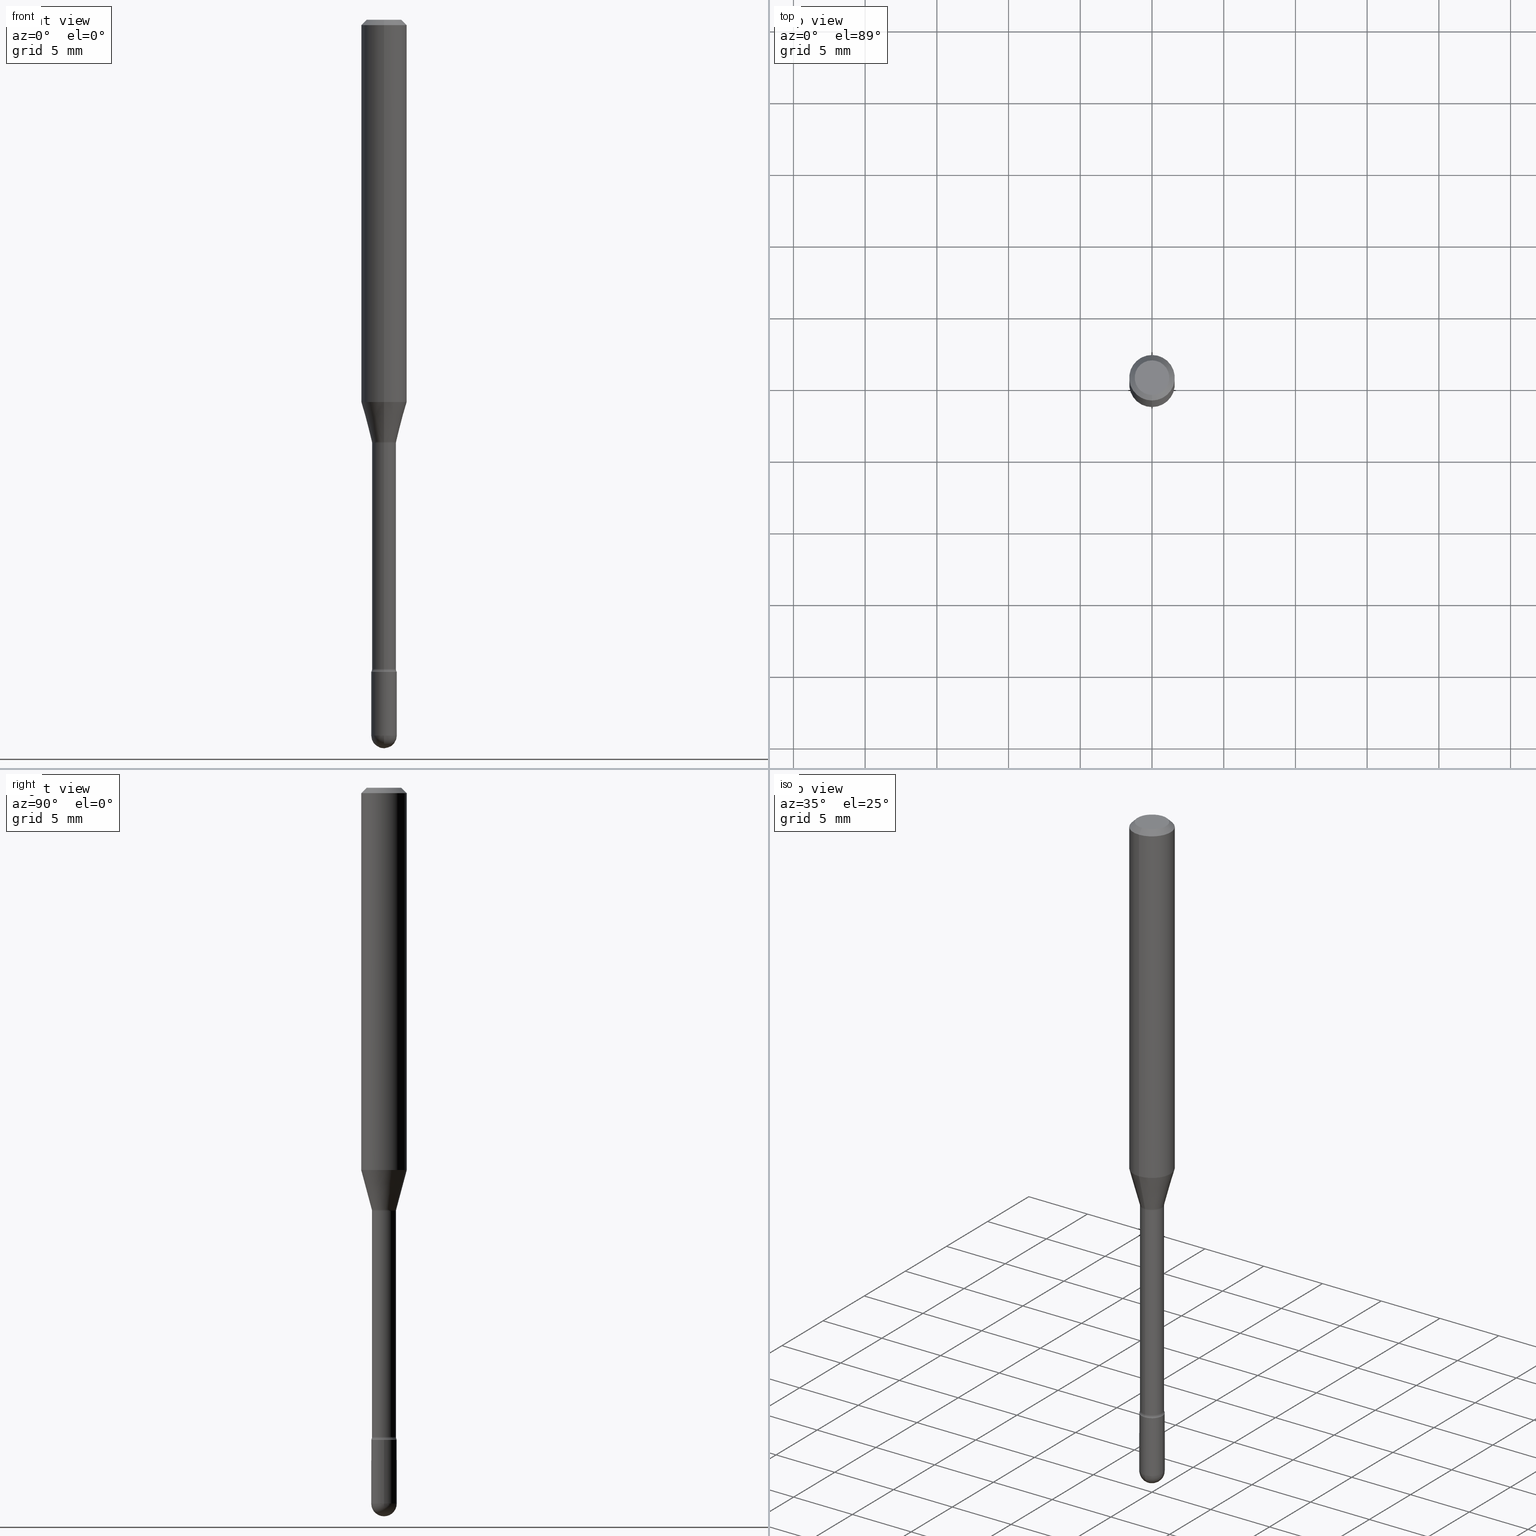
[diagram: canonical four-view strip — front | top / right | iso, engineering-drawing reading convention]
A machine part, canonical four-view strip (front | top / right | iso — engineering-drawing reading convention). The complete STEP part file that produces these views, byte-faithful:
ISO-10303-21;
HEADER;
FILE_DESCRIPTION (( 'STEP AP203' ),
    '1' );
FILE_NAME ('03793.STEP',
    '2024-04-09T20:29:17',
    ( '' ),
    ( '' ),
    'SwSTEP 2.0',
    'SolidWorks 2023',
    '' );
FILE_SCHEMA (( 'CONFIG_CONTROL_DESIGN' ));
ENDSEC;

DATA;
#1 = DIRECTION ( 'NONE',  ( -6.982962677686265133E-15, -1.000000000000000000, 3.491469661165304910E-15 ) ) ;
#2 = DIRECTION ( 'NONE',  ( -6.982962677686265133E-15, -1.000000000000000000, 3.491469661165304910E-15 ) ) ;
#3 = DIRECTION ( 'NONE',  ( -6.982962677686265922E-15, -1.000000000000000000, 3.491469661165305305E-15 ) ) ;
#4 = CONICAL_SURFACE ( 'NONE', #322, 0.06250000000000000000, 0.7853981633974483900 ) ;
#5 = CC_DESIGN_APPROVAL ( #215, ( #175 ) ) ;
#6 = DIRECTION ( 'NONE',  ( 6.982962677686265922E-15, 1.000000000000000000, -3.483106191921935554E-15 ) ) ;
#7 = APPROVAL_ROLE ( '' ) ;
#8 = FACE_OUTER_BOUND ( 'NONE', #407, .T. ) ;
#9 = LINE ( 'NONE', #447, #164 ) ;
#10 = PRODUCT_RELATED_PRODUCT_CATEGORY ( 'detail', '', ( #462 ) ) ;
#11 = PERSON_AND_ORGANIZATION_ROLE ( 'design_owner' ) ;
#12 = AXIS2_PLACEMENT_3D ( 'NONE', #222, #444, #526 ) ;
#13 = AXIS2_PLACEMENT_3D ( 'NONE', #63, #18, #191 ) ;
#14 = CALENDAR_DATE ( 2024, 9, 4 ) ;
#15 = ORIENTED_EDGE ( 'NONE', *, *, #74, .F. ) ;
#16 = ORIENTED_EDGE ( 'NONE', *, *, #92, .F. ) ;
#17 = SHAPE_DEFINITION_REPRESENTATION ( #416, #364 ) ;
#18 = DIRECTION ( 'NONE',  ( -2.445476960663988921E-29, 3.491469661165304910E-15, 1.000000000000000000 ) ) ;
#19 = CIRCLE ( 'NONE', #504, 0.01499999999999999424 ) ;
#20 = ADVANCED_FACE ( 'NONE', ( #35 ), #208, .F. ) ;
#21 = CIRCLE ( 'NONE', #396, 0.04749999999999999362 ) ;
#22 = ORIENTED_EDGE ( 'NONE', *, *, #184, .F. ) ;
#23 = PERSON_AND_ORGANIZATION_ROLE ( 'classification_officer' ) ;
#24 = CARTESIAN_POINT ( 'NONE',  ( 4.805346204153793345E-29, -6.860760830826780393E-15, -1.964999999999999858 ) ) ;
#25 = ORIENTED_EDGE ( 'NONE', *, *, #128, .T. ) ;
#26 = DIRECTION ( 'NONE',  ( -6.982962677686265922E-15, -1.000000000000000000, 3.491469661165305699E-15 ) ) ;
#27 = ORIENTED_EDGE ( 'NONE', *, *, #433, .T. ) ;
#28 = DIRECTION ( 'NONE',  ( -2.445468806185136597E-29, 3.491481338843145583E-15, 1.000000000000000000 ) ) ;
#29 = VERTEX_POINT ( 'NONE', #437 ) ;
#30 = AXIS2_PLACEMENT_3D ( 'NONE', #426, #206, #375 ) ;
#31 = AXIS2_PLACEMENT_3D ( 'NONE', #98, #357, #229 ) ;
#32 = FACE_OUTER_BOUND ( 'NONE', #471, .T. ) ;
#33 = ADVANCED_FACE ( 'NONE', ( #45 ), #4, .T. ) ;
#34 = EDGE_CURVE ( 'NONE', #38, #194, #512, .T. ) ;
#35 = FACE_OUTER_BOUND ( 'NONE', #204, .T. ) ;
#36 = PERSON ( 'UNSPECIFIED', 'UNSPECIFIED', 'UNSPECIFIED', ('UNSPECIFIED'), ('UNSPECIFIED'), ('UNSPECIFIED') ) ;
#37 = CARTESIAN_POINT ( 'NONE',  ( 2.832088531438495623E-29, -4.043444834813290827E-15, -1.158092501787272965 ) ) ;
#38 = VERTEX_POINT ( 'NONE', #210 ) ;
#39 = CARTESIAN_POINT ( 'NONE',  ( 3.840629472727447874E-16, 0.04749999999999999362, -2.485923956665947867E-16 ) ) ;
#40 = ORIENTED_EDGE ( 'NONE', *, *, #244, .T. ) ;
#41 = EDGE_CURVE ( 'NONE', #371, #240, #411, .T. ) ;
#42 = CLOSED_SHELL ( 'NONE', ( #69, #110, #556, #379, #410 ) ) ;
#43 = CONICAL_SURFACE ( 'NONE', #523, 0.03341111260566397706, 0.2617993877991501850 ) ;
#44 = DIRECTION ( 'NONE',  ( -2.445476960663988921E-29, 3.491469661165304910E-15, 1.000000000000000000 ) ) ;
#45 = FACE_OUTER_BOUND ( 'NONE', #276, .T. ) ;
#46 = CARTESIAN_POINT ( 'NONE',  ( 3.403499704291320534E-16, 0.04789999999999385027, -1.782345589506696193 ) ) ;
#47 = DIRECTION ( 'NONE',  ( -2.445476960663988921E-29, 3.491469661165304910E-15, 1.000000000000000000 ) ) ;
#48 = CARTESIAN_POINT ( 'NONE',  ( 3.407447217031445109E-16, 0.03341111260565993862, -1.158092501787273187 ) ) ;
#49 = CARTESIAN_POINT ( 'NONE',  ( 2.841573096316353332E-29, -4.057013286636126142E-15, -1.161974787463810888 ) ) ;
#50 =( LENGTH_UNIT ( ) NAMED_UNIT ( * ) SI_UNIT ( $, .METRE. ) );
#51 = CIRCLE ( 'NONE', #103, 0.01500000000000008792 ) ;
#52 = CIRCLE ( 'NONE', #59, 0.01500000000000008792 ) ;
#53 = CARTESIAN_POINT ( 'NONE',  ( 2.841582571615184441E-29, -4.056999717468898277E-15, -1.161974787463810665 ) ) ;
#54 = LENGTH_MEASURE_WITH_UNIT ( LENGTH_MEASURE( 0.02539999999999999897 ), #50 );
#55 = DIRECTION ( 'NONE',  ( -6.982962677686266711E-15, -1.000000000000000000, 4.151744671222284594E-15 ) ) ;
#56 = EDGE_CURVE ( 'NONE', #507, #76, #343, .T. ) ;
#57 = COORDINATED_UNIVERSAL_TIME_OFFSET ( 5, 0, .BEHIND. ) ;
#58 = CIRCLE ( 'NONE', #323, 0.06250000000000000000 ) ;
#59 = AXIS2_PLACEMENT_3D ( 'NONE', #303, #90, #258 ) ;
#60 = ORIENTED_EDGE ( 'NONE', *, *, #492, .T. ) ;
#61 = CARTESIAN_POINT ( 'NONE',  ( 3.668215440996003596E-31, -5.237204491747986406E-17, -0.01500000000000008271 ) ) ;
#62 = EDGE_LOOP ( 'NONE', ( #64, #25, #390, #86 ) ) ;
#63 = CARTESIAN_POINT ( 'NONE',  ( 2.566604604098489247E-29, -3.664406678762549915E-15, -1.049531296095961519 ) ) ;
#64 = ORIENTED_EDGE ( 'NONE', *, *, #228, .F. ) ;
#65 = PERSON_AND_ORGANIZATION ( #36, #70 ) ;
#66 = CARTESIAN_POINT ( 'NONE',  ( 4.892434153376336703E-29, -6.980819545787783111E-15, -2.000000000000000000 ) ) ;
#67 = EDGE_CURVE ( 'NONE', #450, #194, #19, .T. ) ;
#68 = ORIENTED_EDGE ( 'NONE', *, *, #442, .F. ) ;
#69 = ADVANCED_FACE ( 'NONE', ( #220 ), #358, .T. ) ;
#70 = ORGANIZATION ( 'UNSPECIFIED', 'UNSPECIFIED', '' ) ;
#71 = DIRECTION ( 'NONE',  ( -2.445476960663988921E-29, 3.491469661165304910E-15, 1.000000000000000000 ) ) ;
#72 = APPLICATION_CONTEXT ( 'configuration controlled 3d designs of mechanical parts and assemblies' ) ;
#73 = ORIENTED_EDGE ( 'NONE', *, *, #356, .T. ) ;
#74 = EDGE_CURVE ( 'NONE', #29, #302, #9, .T. ) ;
#75 = CARTESIAN_POINT ( 'NONE',  ( 3.316907271900976096E-16, 0.04749999999999999362, 3.181809715964966858E-17 ) ) ;
#76 = VERTEX_POINT ( 'NONE', #351 ) ;
#77 = DIRECTION ( 'NONE',  ( 1.000000000000000000, -6.982962677686276966E-15, 0.000000000000000000 ) ) ;
#78 = VERTEX_POINT ( 'NONE', #138 ) ;
#79 = AXIS2_PLACEMENT_3D ( 'NONE', #75, #196, #377 ) ;
#80 = VECTOR ( 'NONE', #130, 39.37007874015748143 ) ;
#81 = DIRECTION ( 'NONE',  ( -6.982962677686265922E-15, -1.000000000000000000, 3.491469661165304910E-15 ) ) ;
#82 = ORIENTED_EDGE ( 'NONE', *, *, #184, .T. ) ;
#83 = DIRECTION ( 'NONE',  ( -2.445468806185136597E-29, 3.491481338843145583E-15, 1.000000000000000000 ) ) ;
#84 = EDGE_LOOP ( 'NONE', ( #197, #22, #159, #254 ) ) ;
#85 = CARTESIAN_POINT ( 'NONE',  ( 2.841573096316353332E-29, -4.057013286636126142E-15, -1.161974787463810888 ) ) ;
#86 = ORIENTED_EDGE ( 'NONE', *, *, #492, .F. ) ;
#87 = ADVANCED_FACE ( 'NONE', ( #264 ), #386, .T. ) ;
#88 = AXIS2_PLACEMENT_3D ( 'NONE', #395, #177, #97 ) ;
#89 = CIRCLE ( 'NONE', #549, 0.03500000000000000333 ) ;
#90 = DIRECTION ( 'NONE',  ( -1.000000000000000000, 6.982962677686265922E-15, -4.883557194083112340E-29 ) ) ;
#91 = CARTESIAN_POINT ( 'NONE',  ( 4.377403759588539704E-29, -6.249730693485896433E-15, -1.790000000000000036 ) ) ;
#92 = EDGE_CURVE ( 'NONE', #497, #271, #314, .T. ) ;
#93 = CARTESIAN_POINT ( 'NONE',  ( 2.374002335562008169E-16, 0.03341111260565993862, -1.158092501787273187 ) ) ;
#94 = CARTESIAN_POINT ( 'NONE',  ( 3.403499704291163255E-16, 0.04789999999999594582, -1.161974787463810888 ) ) ;
#95 = ADVANCED_FACE ( 'NONE', ( #181 ), #560, .F. ) ;
#96 = EDGE_CURVE ( 'NONE', #194, #240, #530, .T. ) ;
#97 = DIRECTION ( 'NONE',  ( -7.105427357601001859E-15, -1.000000000000000000, 0.000000000000000000 ) ) ;
#98 = CARTESIAN_POINT ( 'NONE',  ( 4.358685075079700183E-29, -6.223005551474419818E-15, -1.782345589506695971 ) ) ;
#99 = AXIS2_PLACEMENT_3D ( 'NONE', #527, #136, #311 ) ;
#100 = AXIS2_PLACEMENT_3D ( 'NONE', #472, #562, #218 ) ;
#101 = CARTESIAN_POINT ( 'NONE',  ( -4.364351673553658835E-16, -0.06250000000000366374, -1.049531296095961297 ) ) ;
#102 = CARTESIAN_POINT ( 'NONE',  ( 4.377389163071394665E-29, -6.249751596529231267E-15, -1.790000000000000036 ) ) ;
#103 = AXIS2_PLACEMENT_3D ( 'NONE', #46, #135, #310 ) ;
#104 = CC_DESIGN_APPROVAL ( #438, ( #374 ) ) ;
#105 = ORIENTED_EDGE ( 'NONE', *, *, #250, .T. ) ;
#106 = APPROVAL_DATE_TIME ( #146, #438 ) ;
#107 = DIRECTION ( 'NONE',  ( -2.445476960663988921E-29, 3.491469661165304910E-15, 1.000000000000000000 ) ) ;
#108 = ORIENTED_EDGE ( 'NONE', *, *, #56, .T. ) ;
#109 = CARTESIAN_POINT ( 'NONE',  ( 2.832088531438495623E-29, -4.043444834813290827E-15, -1.158092501787272965 ) ) ;
#110 = ADVANCED_FACE ( 'NONE', ( #355 ), #172, .T. ) ;
#111 = ORIENTED_EDGE ( 'NONE', *, *, #544, .F. ) ;
#112 = DIRECTION ( 'NONE',  ( -6.982962677686266711E-15, -1.000000000000000000, 4.088232597799138123E-15 ) ) ;
#113 = CC_DESIGN_PERSON_AND_ORGANIZATION_ASSIGNMENT ( #495, #272, ( #175 ) ) ;
#114 = AXIS2_PLACEMENT_3D ( 'NONE', #53, #47, #55 ) ;
#115 = ORIENTED_EDGE ( 'NONE', *, *, #418, .F. ) ;
#116 = CC_DESIGN_SECURITY_CLASSIFICATION ( #540, ( #175 ) ) ;
#117 = DIRECTION ( 'NONE',  ( 1.000000000000000000, -6.982962677686265922E-15, 4.883557194083112340E-29 ) ) ;
#118 = CARTESIAN_POINT ( 'NONE',  ( 3.668215440996003596E-31, -5.237204491747986406E-17, -0.01500000000000008271 ) ) ;
#119 = DIRECTION ( 'NONE',  ( -2.445468806185136597E-29, 3.491481338843145583E-15, 1.000000000000000000 ) ) ;
#120 = DESIGN_CONTEXT ( 'detailed design', #457, 'design' ) ;
#121 = ORIENTED_EDGE ( 'NONE', *, *, #516, .T. ) ;
#122 = CARTESIAN_POINT ( 'NONE',  ( -1.169113584055446105E-44, 1.669184350826100908E-30, 4.780733988912460139E-16 ) ) ;
#123 = EDGE_LOOP ( 'NONE', ( #217, #251 ) ) ;
#124 = AXIS2_PLACEMENT_3D ( 'NONE', #125, #476, #391 ) ;
#125 = CARTESIAN_POINT ( 'NONE',  ( 2.832088531438495623E-29, -4.043444834813290827E-15, -1.158092501787272965 ) ) ;
#126 = ORIENTED_EDGE ( 'NONE', *, *, #250, .F. ) ;
#127 = LINE ( 'NONE', #347, #80 ) ;
#128 = EDGE_CURVE ( 'NONE', #279, #373, #332, .T. ) ;
#129 = ORIENTED_EDGE ( 'NONE', *, *, #128, .F. ) ;
#130 = DIRECTION ( 'NONE',  ( -2.445476960663988921E-29, 3.491469661165304910E-15, 1.000000000000000000 ) ) ;
#131 = CARTESIAN_POINT ( 'NONE',  ( 2.337685600651166843E-16, 0.03289999999999595331, -1.161974787463810888 ) ) ;
#132 = CIRCLE ( 'NONE', #477, 0.03500000000000000333 ) ;
#133 = CARTESIAN_POINT ( 'NONE',  ( 0.000000000000000000, 0.000000000000000000, 0.000000000000000000 ) ) ;
#134 = DIRECTION ( 'NONE',  ( 7.105427357600997914E-15, 1.000000000000000000, 0.000000000000000000 ) ) ;
#135 = DIRECTION ( 'NONE',  ( 1.000000000000000000, -7.105427357601001070E-15, 4.926315365531774418E-29 ) ) ;
#136 = DIRECTION ( 'NONE',  ( -2.445468806185136597E-29, 3.491481338843145583E-15, 1.000000000000000000 ) ) ;
#137 = CARTESIAN_POINT ( 'NONE',  ( -4.364351673553912750E-16, -0.06250000000000005551, -0.01499999999999986587 ) ) ;
#138 = CARTESIAN_POINT ( 'NONE',  ( -3.773273898774340269E-16, -0.04749999999999999362, 8.309722214410915366E-17 ) ) ;
#139 = DIRECTION ( 'NONE',  ( 0.000000000000000000, 0.000000000000000000, 1.000000000000000000 ) ) ;
#140 = AXIS2_PLACEMENT_3D ( 'NONE', #243, #256, #382 ) ;
#141 = AXIS2_PLACEMENT_3D ( 'NONE', #152, #117, #290 ) ;
#142 = DIRECTION ( 'NONE',  ( -2.445476960663988921E-29, 3.491469661165304910E-15, 1.000000000000000000 ) ) ;
#143 = COORDINATED_UNIVERSAL_TIME_OFFSET ( 5, 0, .BEHIND. ) ;
#144 = APPROVAL_STATUS ( 'not_yet_approved' ) ;
#145 = VERTEX_POINT ( 'NONE', #101 ) ;
#146 = DATE_AND_TIME ( #363, #427 ) ;
#147 = AXIS2_PLACEMENT_3D ( 'NONE', #461, #71, #26 ) ;
#148 = APPROVAL_PERSON_ORGANIZATION ( #65, #518, #241 ) ;
#149 = VERTEX_POINT ( 'NONE', #225 ) ;
#150 = DIRECTION ( 'NONE',  ( -2.445476960663988921E-29, 3.491469661165304910E-15, 1.000000000000000000 ) ) ;
#151 = ORIENTED_EDGE ( 'NONE', *, *, #537, .T. ) ;
#152 = CARTESIAN_POINT ( 'NONE',  ( 4.805346204153793345E-29, -6.860760830826780393E-15, -1.964999999999999858 ) ) ;
#153 = ORIENTED_EDGE ( 'NONE', *, *, #189, .F. ) ;
#154 = CARTESIAN_POINT ( 'NONE',  ( 4.805346204153793345E-29, -6.860760830826780393E-15, -1.964999999999999858 ) ) ;
#155 = VECTOR ( 'NONE', #424, 39.37007874015748143 ) ;
#156 = CIRCLE ( 'NONE', #342, 0.03500000000000000333 ) ;
#157 = ORIENTED_EDGE ( 'NONE', *, *, #418, .T. ) ;
#158 = DIRECTION ( 'NONE',  ( -2.445476960663988921E-29, 3.491469661165304910E-15, 1.000000000000000000 ) ) ;
#159 = ORIENTED_EDGE ( 'NONE', *, *, #41, .T. ) ;
#160 = DIRECTION ( 'NONE',  ( -2.445476960663988921E-29, 3.491469661165304910E-15, 1.000000000000000000 ) ) ;
#161 = ORIENTED_EDGE ( 'NONE', *, *, #537, .F. ) ;
#162 = DIRECTION ( 'NONE',  ( -2.445468806185136597E-29, 3.491481338843145583E-15, 1.000000000000000000 ) ) ;
#163 = DIRECTION ( 'NONE',  ( -6.982962677686266711E-15, -1.000000000000000000, 0.000000000000000000 ) ) ;
#164 = VECTOR ( 'NONE', #521, 39.37007874015748143 ) ;
#165 = VECTOR ( 'NONE', #344, 39.37007874015748143 ) ;
#166 = EDGE_CURVE ( 'NONE', #240, #194, #401, .T. ) ;
#167 = FACE_OUTER_BOUND ( 'NONE', #503, .T. ) ;
#168 = EDGE_LOOP ( 'NONE', ( #454, #388, #108, #298 ) ) ;
#169 = DIRECTION ( 'NONE',  ( 1.839019923739599526E-15, 0.2588190451025248473, 0.9659258262890670910 ) ) ;
#170 = VERTEX_POINT ( 'NONE', #304 ) ;
#171 = CYLINDRICAL_SURFACE ( 'NONE', #524, 0.03500000000000000333 ) ;
#172 = SPHERICAL_SURFACE ( 'NONE', #12, 0.03500000000000001721 ) ;
#173 = ADVANCED_FACE ( 'NONE', ( #8 ), #179, .T. ) ;
#174 = AXIS2_PLACEMENT_3D ( 'NONE', #491, #107, #278 ) ;
#175 = PRODUCT_DEFINITION_FORMATION_WITH_SPECIFIED_SOURCE ( 'ANY', '', #462, .NOT_KNOWN. ) ;
#176 = DIRECTION ( 'NONE',  ( 1.000000000000000000, -6.982962677686276966E-15, 0.000000000000000000 ) ) ;
#177 = DIRECTION ( 'NONE',  ( -1.000000000000000000, 7.105427357601001070E-15, -4.926315508542082329E-29 ) ) ;
#178 = DIRECTION ( 'NONE',  ( -2.445476960663988921E-29, 3.491469661165304910E-15, 1.000000000000000000 ) ) ;
#179 = CYLINDRICAL_SURFACE ( 'NONE', #315, 0.06250000000000000000 ) ;
#180 = DIRECTION ( 'NONE',  ( 1.000000000000000000, -6.982962677686265922E-15, 4.876176775795935793E-29 ) ) ;
#181 = FACE_OUTER_BOUND ( 'NONE', #84, .T. ) ;
#182 = COORDINATED_UNIVERSAL_TIME_OFFSET ( 5, 0, .BEHIND. ) ;
#183 = AXIS2_PLACEMENT_3D ( 'NONE', #455, #142, #317 ) ;
#184 = EDGE_CURVE ( 'NONE', #371, #450, #202, .T. ) ;
#185 =( CONVERSION_BASED_UNIT ( 'INCH', #54 ) LENGTH_UNIT ( ) NAMED_UNIT ( #207 ) );
#186 = ORIENTED_EDGE ( 'NONE', *, *, #211, .T. ) ;
#187 = EDGE_CURVE ( 'NONE', #548, #76, #265, .T. ) ;
#188 = EDGE_LOOP ( 'NONE', ( #82, #73, #126, #327 ) ) ;
#189 = EDGE_CURVE ( 'NONE', #248, #145, #230, .T. ) ;
#190 = CLOSED_SHELL ( 'NONE', ( #434, #232, #534, #33, #173, #227, #319, #331, #87, #282, #20, #288, #468, #95 ) ) ;
#191 = DIRECTION ( 'NONE',  ( -6.982962677686265922E-15, -1.000000000000000000, 4.370956789862821150E-15 ) ) ;
#192 = AXIS2_PLACEMENT_3D ( 'NONE', #349, #565, #3 ) ;
#193 = LOCAL_TIME ( 16, 29, 17.00000000000000000, #143 ) ;
#194 = VERTEX_POINT ( 'NONE', #131 ) ;
#195 = DATE_TIME_ROLE ( 'classification_date' ) ;
#196 = DIRECTION ( 'NONE',  ( 2.445476960663988641E-29, -3.491469661165304910E-15, -1.000000000000000000 ) ) ;
#197 = ORIENTED_EDGE ( 'NONE', *, *, #67, .F. ) ;
#198 = FACE_OUTER_BOUND ( 'NONE', #188, .T. ) ;
#199 = VERTEX_POINT ( 'NONE', #479 ) ;
#200 = SECURITY_CLASSIFICATION_LEVEL ( 'unclassified' ) ;
#201 = CARTESIAN_POINT ( 'NONE',  ( -4.287811248607203282E-16, -0.06250000000000005551, -0.01499999999999986587 ) ) ;
#202 = CIRCLE ( 'NONE', #183, 0.03341111260566397706 ) ;
#203 = AXIS2_PLACEMENT_3D ( 'NONE', #415, #466, #81 ) ;
#204 = EDGE_LOOP ( 'NONE', ( #467, #348 ) ) ;
#205 = APPROVAL_PERSON_ORGANIZATION ( #267, #438, #367 ) ;
#206 = DIRECTION ( 'NONE',  ( -2.445468806185136597E-29, 3.491481338843145583E-15, 1.000000000000000000 ) ) ;
#207 = DIMENSIONAL_EXPONENTS ( 1.000000000000000000, 0.000000000000000000, 0.000000000000000000, 0.000000000000000000, 0.000000000000000000, 0.000000000000000000, 0.000000000000000000 ) ;
#208 = PLANE ( 'NONE',  #140 ) ;
#209 = DIRECTION ( 'NONE',  ( -2.445468806185136597E-29, 3.491481338843145583E-15, 1.000000000000000000 ) ) ;
#210 = CARTESIAN_POINT ( 'NONE',  ( 2.412292587905979007E-16, 0.03289999999999376062, -1.782345589506695971 ) ) ;
#211 = EDGE_CURVE ( 'NONE', #149, #199, #286, .T. ) ;
#212 = DIRECTION ( 'NONE',  ( -2.445476960663988921E-29, 3.491469661165304910E-15, 1.000000000000000000 ) ) ;
#213 = ORIENTED_EDGE ( 'NONE', *, *, #350, .T. ) ;
#214 = CIRCLE ( 'NONE', #30, 0.03500000000000000333 ) ;
#215 = APPROVAL ( #397, 'UNSPECIFIED' ) ;
#216 = DIRECTION ( 'NONE',  ( -6.982962677686265922E-15, -1.000000000000000000, 3.491469661165304910E-15 ) ) ;
#217 = ORIENTED_EDGE ( 'NONE', *, *, #529, .T. ) ;
#218 = DIRECTION ( 'NONE',  ( 6.982962677686265922E-15, 1.000000000000000000, 0.000000000000000000 ) ) ;
#219 = EDGE_CURVE ( 'NONE', #373, #497, #387, .T. ) ;
#220 = FACE_OUTER_BOUND ( 'NONE', #432, .T. ) ;
#221 = CARTESIAN_POINT ( 'NONE',  ( 4.377389163071394665E-29, -6.249751596529231267E-15, -1.790000000000000036 ) ) ;
#222 = CARTESIAN_POINT ( 'NONE',  ( 4.805346204153793345E-29, -6.860760830826780393E-15, -1.964999999999999858 ) ) ;
#223 = CIRCLE ( 'NONE', #514, 0.03500000000000000333 ) ;
#224 = PERSON_AND_ORGANIZATION ( #36, #70 ) ;
#225 = CARTESIAN_POINT ( 'NONE',  ( -2.444036937189759377E-16, -0.03500000000000630385, -1.789999999999999813 ) ) ;
#226 = DIRECTION ( 'NONE',  ( -2.445476960663988921E-29, 3.491469661165304910E-15, 1.000000000000000000 ) ) ;
#227 = ADVANCED_FACE ( 'NONE', ( #198 ), #246, .T. ) ;
#228 = EDGE_CURVE ( 'NONE', #279, #170, #488, .T. ) ;
#229 = DIRECTION ( 'NONE',  ( -6.982962677686265922E-15, -1.000000000000000000, 0.000000000000000000 ) ) ;
#230 = CIRCLE ( 'NONE', #13, 0.06250000000000000000 ) ;
#231 = ORIENTED_EDGE ( 'NONE', *, *, #219, .F. ) ;
#232 = ADVANCED_FACE ( 'NONE', ( #32 ), #333, .T. ) ;
#233 = ORIENTED_EDGE ( 'NONE', *, *, #544, .T. ) ;
#234 = ORIENTED_EDGE ( 'NONE', *, *, #329, .T. ) ;
#235 = COORDINATED_UNIVERSAL_TIME_OFFSET ( 5, 0, .BEHIND. ) ;
#236 = VECTOR ( 'NONE', #400, 39.37007874015748143 ) ;
#237 = CARTESIAN_POINT ( 'NONE',  ( -2.297394720958344695E-16, -0.03290000000000620900, -1.782345589506695971 ) ) ;
#238 = VERTEX_POINT ( 'NONE', #237 ) ;
#239 = CARTESIAN_POINT ( 'NONE',  ( -2.297394720958497537E-16, -0.03290000000000405794, -1.161974787463810443 ) ) ;
#240 = VERTEX_POINT ( 'NONE', #239 ) ;
#241 = APPROVAL_ROLE ( '' ) ;
#242 = CARTESIAN_POINT ( 'NONE',  ( 4.805346204153793345E-29, -6.860760830826780393E-15, -1.964999999999999858 ) ) ;
#243 = CARTESIAN_POINT ( 'NONE',  ( 2.444036937190630575E-16, 0.03499999999999375139, -1.790000000000000036 ) ) ;
#244 = EDGE_CURVE ( 'NONE', #302, #271, #214, .T. ) ;
#245 = FACE_OUTER_BOUND ( 'NONE', #553, .T. ) ;
#246 = CONICAL_SURFACE ( 'NONE', #273, 0.03341111260566397706, 0.2617993877991501850 ) ;
#247 = APPROVAL_PERSON_ORGANIZATION ( #224, #215, #7 ) ;
#248 = VERTEX_POINT ( 'NONE', #554 ) ;
#249 = CARTESIAN_POINT ( 'NONE',  ( 4.440892098500625669E-16, 0.06250000000000000000, 2.598565450684145310E-16 ) ) ;
#250 = EDGE_CURVE ( 'NONE', #145, #248, #58, .T. ) ;
#251 = ORIENTED_EDGE ( 'NONE', *, *, #296, .T. ) ;
#252 = CYLINDRICAL_SURFACE ( 'NONE', #192, 0.03289999999999999175 ) ;
#253 = UNCERTAINTY_MEASURE_WITH_UNIT (LENGTH_MEASURE( 1.000000000000000082E-05 ), #185, 'distance_accuracy_value', 'NONE');
#254 = ORIENTED_EDGE ( 'NONE', *, *, #166, .T. ) ;
#255 = DIRECTION ( 'NONE',  ( -2.445476960663988921E-29, 3.491469661165304910E-15, 1.000000000000000000 ) ) ;
#256 = DIRECTION ( 'NONE',  ( -2.445476960663988641E-29, 3.491469661165304910E-15, 1.000000000000000000 ) ) ;
#257 = VECTOR ( 'NONE', #169, 39.37007874015748143 ) ;
#258 = DIRECTION ( 'NONE',  ( -6.982962677686267499E-15, -1.000000000000000000, 0.000000000000000000 ) ) ;
#259 = DIRECTION ( 'NONE',  ( -2.445476960663988921E-29, 3.491469661165304910E-15, 1.000000000000000000 ) ) ;
#260 = CARTESIAN_POINT ( 'NONE',  ( -2.333085523452963922E-16, -0.03341111260566802243, -1.158092501787272965 ) ) ;
#261 = DIRECTION ( 'NONE',  ( 1.000000000000000000, -7.105427357601001070E-15, 4.926315365531774418E-29 ) ) ;
#262 = DIRECTION ( 'NONE',  ( -2.445476960663988921E-29, 3.491469661165304910E-15, 1.000000000000000000 ) ) ;
#263 = EDGE_CURVE ( 'NONE', #238, #38, #451, .T. ) ;
#264 = FACE_OUTER_BOUND ( 'NONE', #168, .T. ) ;
#265 = CIRCLE ( 'NONE', #174, 0.06250000000000000000 ) ;
#266 = CARTESIAN_POINT ( 'NONE',  ( -1.169113584055446105E-44, 1.669184350826100908E-30, 4.780733988912460139E-16 ) ) ;
#267 = PERSON_AND_ORGANIZATION ( #36, #70 ) ;
#268 = EDGE_CURVE ( 'NONE', #78, #548, #500, .T. ) ;
#269 = ORIENTED_EDGE ( 'NONE', *, *, #313, .F. ) ;
#270 = PERSON_AND_ORGANIZATION ( #36, #70 ) ;
#271 = VERTEX_POINT ( 'NONE', #326 ) ;
#272 = PERSON_AND_ORGANIZATION_ROLE ( 'creator' ) ;
#273 = AXIS2_PLACEMENT_3D ( 'NONE', #109, #158, #423 ) ;
#274 = CIRCLE ( 'NONE', #478, 0.06250000000000000000 ) ;
#275 = TOROIDAL_SURFACE ( 'NONE', #324, 0.04790000000000007446, 0.01500000000000008792 ) ;
#276 = EDGE_LOOP ( 'NONE', ( #428, #325, #564, #456 ) ) ;
#277 = DATE_TIME_ROLE ( 'creation_date' ) ;
#278 = DIRECTION ( 'NONE',  ( -6.982962677686265922E-15, -1.000000000000000000, 3.483106191921935554E-15 ) ) ;
#279 = VERTEX_POINT ( 'NONE', #66 ) ;
#280 = PERSON_AND_ORGANIZATION ( #36, #70 ) ;
#281 = PLANE ( 'NONE',  #79 ) ;
#282 = ADVANCED_FACE ( 'NONE', ( #502 ), #281, .F. ) ;
#283 = ORIENTED_EDGE ( 'NONE', *, *, #552, .F. ) ;
#284 = APPROVAL_STATUS ( 'not_yet_approved' ) ;
#285 = FACE_OUTER_BOUND ( 'NONE', #366, .T. ) ;
#286 = CIRCLE ( 'NONE', #532, 0.03500000000000000333 ) ;
#287 = EDGE_LOOP ( 'NONE', ( #294, #473, #330, #376 ) ) ;
#288 = ADVANCED_FACE ( 'NONE', ( #245 ), #561, .F. ) ;
#289 = DATE_AND_TIME ( #508, #414 ) ;
#290 = DIRECTION ( 'NONE',  ( 6.982962677686265922E-15, 1.000000000000000000, 0.000000000000000000 ) ) ;
#291 = DIRECTION ( 'NONE',  ( 6.982962677686265922E-15, 1.000000000000000000, -3.483106191921935554E-15 ) ) ;
#292 = CC_DESIGN_PERSON_AND_ORGANIZATION_ASSIGNMENT ( #280, #412, ( #175 ) ) ;
#293 = DIRECTION ( 'NONE',  ( 1.000000000000000000, -6.982962677686276966E-15, 0.000000000000000000 ) ) ;
#294 = ORIENTED_EDGE ( 'NONE', *, *, #34, .F. ) ;
#295 = DIRECTION ( 'NONE',  ( -4.851104656540964275E-15, -0.7071067811865500152, -0.7071067811865450192 ) ) ;
#296 = EDGE_CURVE ( 'NONE', #78, #507, #21, .T. ) ;
#297 = AXIS2_PLACEMENT_3D ( 'NONE', #85, #255, #1 ) ;
#298 = ORIENTED_EDGE ( 'NONE', *, *, #552, .T. ) ;
#299 = CARTESIAN_POINT ( 'NONE',  ( -2.486899575159870668E-16, -0.03500000000000687284, -1.964999999999999858 ) ) ;
#300 = ORIENTED_EDGE ( 'NONE', *, *, #356, .F. ) ;
#301 = CARTESIAN_POINT ( 'NONE',  ( 4.358670540980283234E-29, -6.223026365132013835E-15, -1.782345589506695971 ) ) ;
#302 = VERTEX_POINT ( 'NONE', #545 ) ;
#303 = CARTESIAN_POINT ( 'NONE',  ( -3.344839122611290224E-16, -0.04790000000000629171, -1.782345589506695749 ) ) ;
#304 = CARTESIAN_POINT ( 'NONE',  ( 2.444036937190673962E-16, 0.03499999999999315464, -1.964999999999999858 ) ) ;
#305 = AXIS2_PLACEMENT_3D ( 'NONE', #525, #212, #385 ) ;
#306 = LOCAL_TIME ( 16, 29, 17.00000000000000000, #338 ) ;
#307 = FACE_OUTER_BOUND ( 'NONE', #499, .T. ) ;
#308 = CARTESIAN_POINT ( 'NONE',  ( 4.364351673553919652E-16, 0.06249999999999995143, -0.01500000000000030129 ) ) ;
#309 = CC_DESIGN_PERSON_AND_ORGANIZATION_ASSIGNMENT ( #541, #23, ( #540 ) ) ;
#310 = DIRECTION ( 'NONE',  ( 7.105427357601001859E-15, 1.000000000000000000, 0.000000000000000000 ) ) ;
#311 = DIRECTION ( 'NONE',  ( 1.000000000000000000, -6.982962677686265922E-15, 4.876176775795936353E-29 ) ) ;
#312 = DIRECTION ( 'NONE',  ( -2.438088387897960049E-29, 3.491481338843145188E-15, 1.000000000000000000 ) ) ;
#313 = EDGE_CURVE ( 'NONE', #248, #76, #464, .T. ) ;
#314 = LINE ( 'NONE', #484, #236 ) ;
#315 = AXIS2_PLACEMENT_3D ( 'NONE', #266, #226, #531 ) ;
#316 = CC_DESIGN_DATE_AND_TIME_ASSIGNMENT ( #449, #277, ( #374 ) ) ;
#317 = DIRECTION ( 'NONE',  ( -6.982962677686266711E-15, -1.000000000000000000, 4.088232597799138123E-15 ) ) ;
#318 = DIRECTION ( 'NONE',  ( -6.982962677686265922E-15, -1.000000000000000000, 3.483106191921935554E-15 ) ) ;
#319 = ADVANCED_FACE ( 'NONE', ( #429 ), #43, .T. ) ;
#320 = CALENDAR_DATE ( 2024, 9, 4 ) ;
#321 = ORIENTED_EDGE ( 'NONE', *, *, #263, .T. ) ;
#322 = AXIS2_PLACEMENT_3D ( 'NONE', #118, #430, #291 ) ;
#323 = AXIS2_PLACEMENT_3D ( 'NONE', #381, #150, #372 ) ;
#324 = AXIS2_PLACEMENT_3D ( 'NONE', #301, #44, #216 ) ;
#325 = ORIENTED_EDGE ( 'NONE', *, *, #268, .T. ) ;
#326 = CARTESIAN_POINT ( 'NONE',  ( 0.03500000000000000333, -6.494155290248250444E-15, -1.790000000000000036 ) ) ;
#327 = ORIENTED_EDGE ( 'NONE', *, *, #516, .F. ) ;
#328 = DIRECTION ( 'NONE',  ( -2.445476960663988921E-29, 3.491469661165304910E-15, 1.000000000000000000 ) ) ;
#329 = EDGE_CURVE ( 'NONE', #29, #373, #156, .T. ) ;
#330 = ORIENTED_EDGE ( 'NONE', *, *, #480, .T. ) ;
#331 = ADVANCED_FACE ( 'NONE', ( #285 ), #420, .T. ) ;
#332 = CIRCLE ( 'NONE', #88, 0.03500000000000001721 ) ;
#333 = CYLINDRICAL_SURFACE ( 'NONE', #460, 0.03289999999999999175 ) ;
#334 = ORIENTED_EDGE ( 'NONE', *, *, #480, .F. ) ;
#335 = CALENDAR_DATE ( 2024, 9, 4 ) ;
#336 = DIRECTION ( 'NONE',  ( -2.445476960663988921E-29, 3.491469661165304910E-15, 1.000000000000000000 ) ) ;
#337 = EDGE_LOOP ( 'NONE', ( #129, #517, #493, #231 ) ) ;
#338 = COORDINATED_UNIVERSAL_TIME_OFFSET ( 5, 0, .BEHIND. ) ;
#339 = DIRECTION ( 'NONE',  ( -6.982962677686265922E-15, -1.000000000000000000, 0.000000000000000000 ) ) ;
#340 = ORIENTED_EDGE ( 'NONE', *, *, #41, .F. ) ;
#341 = FACE_OUTER_BOUND ( 'NONE', #380, .T. ) ;
#342 = AXIS2_PLACEMENT_3D ( 'NONE', #154, #542, #506 ) ;
#343 = LINE ( 'NONE', #308, #513 ) ;
#344 = DIRECTION ( 'NONE',  ( -2.445476960663988921E-29, 3.491469661165304910E-15, 1.000000000000000000 ) ) ;
#345 = EDGE_CURVE ( 'NONE', #497, #170, #469, .T. ) ;
#346 = EDGE_LOOP ( 'NONE', ( #27, #40 ) ) ;
#347 = CARTESIAN_POINT ( 'NONE',  ( -4.364351673553916201E-16, -0.06250000000000000000, 6.962902527140776941E-16 ) ) ;
#348 = ORIENTED_EDGE ( 'NONE', *, *, #350, .F. ) ;
#349 = CARTESIAN_POINT ( 'NONE',  ( -1.169113584055446105E-44, 1.669184350826100908E-30, 4.780733988912460139E-16 ) ) ;
#350 = EDGE_CURVE ( 'NONE', #199, #149, #223, .T. ) ;
#351 = CARTESIAN_POINT ( 'NONE',  ( 4.440892098500883528E-16, 0.06249999999999993755, -0.01500000000000030129 ) ) ;
#352 = TOROIDAL_SURFACE ( 'NONE', #297, 0.04790000000000000507, 0.01499999999999999077 ) ;
#353 = AXIS2_PLACEMENT_3D ( 'NONE', #360, #139, #490 ) ;
#354 = CARTESIAN_POINT ( 'NONE',  ( -2.333085523452963922E-16, -0.03341111260566802243, -1.158092501787272965 ) ) ;
#355 = FACE_OUTER_BOUND ( 'NONE', #62, .T. ) ;
#356 = EDGE_CURVE ( 'NONE', #450, #248, #389, .T. ) ;
#357 = DIRECTION ( 'NONE',  ( -2.445476960663988921E-29, 3.491469661165304910E-15, 1.000000000000000000 ) ) ;
#358 = CYLINDRICAL_SURFACE ( 'NONE', #99, 0.03500000000000000333 ) ;
#359 = MANIFOLD_SOLID_BREP ( 'Body-Move/Copy2[2]', #190 ) ;
#360 = CARTESIAN_POINT ( 'NONE',  ( 0.000000000000000000, 0.000000000000000000, 0.000000000000000000 ) ) ;
#361 = DIRECTION ( 'NONE',  ( -6.982962677686266711E-15, -1.000000000000000000, 4.151744671222284594E-15 ) ) ;
#362 = LOCAL_TIME ( 16, 29, 17.00000000000000000, #57 ) ;
#363 = CALENDAR_DATE ( 2024, 9, 4 ) ;
#364 = ADVANCED_BREP_SHAPE_REPRESENTATION ( '03793', ( #538, #359, #353 ), #563 ) ;
#365 = DATE_AND_TIME ( #14, #362 ) ;
#366 = EDGE_LOOP ( 'NONE', ( #269, #536, #151, #283 ) ) ;
#367 = APPROVAL_ROLE ( '' ) ;
#368 = ORIENTED_EDGE ( 'NONE', *, *, #187, .F. ) ;
#369 = VECTOR ( 'NONE', #435, 39.37007874015749564 ) ;
#370 = DIRECTION ( 'NONE',  ( -2.445476960663988921E-29, 3.491469661165304910E-15, 1.000000000000000000 ) ) ;
#371 = VERTEX_POINT ( 'NONE', #260 ) ;
#372 = DIRECTION ( 'NONE',  ( -6.982962677686265922E-15, -1.000000000000000000, 4.370956789862821150E-15 ) ) ;
#373 = VERTEX_POINT ( 'NONE', #299 ) ;
#374 = PRODUCT_DEFINITION ( 'UNKNOWN', '', #175, #120 ) ;
#375 = DIRECTION ( 'NONE',  ( 1.000000000000000000, -6.982962677686276966E-15, 0.000000000000000000 ) ) ;
#376 = ORIENTED_EDGE ( 'NONE', *, *, #96, .F. ) ;
#377 = DIRECTION ( 'NONE',  ( 6.982962677686265922E-15, 1.000000000000000000, -3.491469661165304910E-15 ) ) ;
#378 = VECTOR ( 'NONE', #551, 39.37007874015748143 ) ;
#379 = ADVANCED_FACE ( 'NONE', ( #441 ), #522, .T. ) ;
#380 = EDGE_LOOP ( 'NONE', ( #115, #555, #417, #340 ) ) ;
#381 = CARTESIAN_POINT ( 'NONE',  ( 2.566604604098489247E-29, -3.664406678762549915E-15, -1.049531296095961519 ) ) ;
#382 = DIRECTION ( 'NONE',  ( -6.982962677686265922E-15, -1.000000000000000000, 3.491469661165304910E-15 ) ) ;
#383 = CARTESIAN_POINT ( 'NONE',  ( 0.03500000000000000333, -6.799659907397025402E-15, -1.964999999999999858 ) ) ;
#384 = CARTESIAN_POINT ( 'NONE',  ( -3.344839122611437642E-16, -0.04790000000000405739, -1.161974787463810665 ) ) ;
#385 = DIRECTION ( 'NONE',  ( -6.982962677686266711E-15, -1.000000000000000000, 3.491469661165305305E-15 ) ) ;
#386 = CONICAL_SURFACE ( 'NONE', #486, 0.06250000000000000000, 0.7853981633974483900 ) ;
#387 = CIRCLE ( 'NONE', #496, 0.03500000000000000333 ) ;
#388 = ORIENTED_EDGE ( 'NONE', *, *, #529, .F. ) ;
#389 = LINE ( 'NONE', #93, #257 ) ;
#390 = ORIENTED_EDGE ( 'NONE', *, *, #329, .F. ) ;
#391 = DIRECTION ( 'NONE',  ( -6.982962677686266711E-15, -1.000000000000000000, 4.088232597799138123E-15 ) ) ;
#392 = CARTESIAN_POINT ( 'NONE',  ( 3.668215440996003596E-31, -5.237204491747986406E-17, -0.01500000000000008271 ) ) ;
#393 = FACE_OUTER_BOUND ( 'NONE', #287, .T. ) ;
#394 = AXIS2_PLACEMENT_3D ( 'NONE', #384, #559, #163 ) ;
#395 = CARTESIAN_POINT ( 'NONE',  ( 4.805346204153793345E-29, -6.860760830826780393E-15, -1.964999999999999858 ) ) ;
#396 = AXIS2_PLACEMENT_3D ( 'NONE', #509, #328, #511 ) ;
#397 = APPROVAL_STATUS ( 'not_yet_approved' ) ;
#398 = CARTESIAN_POINT ( 'NONE',  ( 2.841582571615184441E-29, -4.056999717468898277E-15, -1.161974787463810665 ) ) ;
#399 = APPLICATION_PROTOCOL_DEFINITION ( 'international standard', 'config_control_design', 1994, #72 ) ;
#400 = DIRECTION ( 'NONE',  ( -2.445468806185136877E-29, 3.491481338843145188E-15, 1.000000000000000000 ) ) ;
#401 = CIRCLE ( 'NONE', #402, 0.03289999999999999869 ) ;
#402 = AXIS2_PLACEMENT_3D ( 'NONE', #398, #408, #361 ) ;
#403 = PLANE ( 'NONE',  #550 ) ;
#404 = ORIENTED_EDGE ( 'NONE', *, *, #34, .T. ) ;
#405 =( NAMED_UNIT ( * ) PLANE_ANGLE_UNIT ( ) SI_UNIT ( $, .RADIAN. ) );
#406 = CC_DESIGN_PERSON_AND_ORGANIZATION_ASSIGNMENT ( #453, #11, ( #462 ) ) ;
#407 = EDGE_LOOP ( 'NONE', ( #105, #458, #368, #161 ) ) ;
#408 = DIRECTION ( 'NONE',  ( -2.445476960663988921E-29, 3.491469661165304910E-15, 1.000000000000000000 ) ) ;
#409 = EDGE_LOOP ( 'NONE', ( #300, #157, #121, #153 ) ) ;
#410 = ADVANCED_FACE ( 'NONE', ( #307 ), #171, .T. ) ;
#411 = CIRCLE ( 'NONE', #394, 0.01499999999999999424 ) ;
#412 = PERSON_AND_ORGANIZATION_ROLE ( 'design_supplier' ) ;
#413 = CIRCLE ( 'NONE', #305, 0.04749999999999999362 ) ;
#414 = LOCAL_TIME ( 16, 29, 17.00000000000000000, #235 ) ;
#415 = CARTESIAN_POINT ( 'NONE',  ( 4.358670540980283234E-29, -6.223026365132013835E-15, -1.782345589506695971 ) ) ;
#416 = PRODUCT_DEFINITION_SHAPE ( 'NONE', 'NONE',  #374 ) ;
#417 = ORIENTED_EDGE ( 'NONE', *, *, #96, .T. ) ;
#418 = EDGE_CURVE ( 'NONE', #450, #371, #445, .T. ) ;
#419 = DATE_AND_TIME ( #335, #306 ) ;
#420 = CYLINDRICAL_SURFACE ( 'NONE', #147, 0.06250000000000000000 ) ;
#421 = ORIENTED_EDGE ( 'NONE', *, *, #345, .T. ) ;
#422 = APPROVAL_DATE_TIME ( #289, #518 ) ;
#423 = DIRECTION ( 'NONE',  ( -6.982962677686266711E-15, -1.000000000000000000, 4.088232597799138123E-15 ) ) ;
#424 = DIRECTION ( 'NONE',  ( -2.445476960663988921E-29, 3.491469661165304910E-15, 1.000000000000000000 ) ) ;
#425 = AXIS2_PLACEMENT_3D ( 'NONE', #547, #160, #339 ) ;
#426 = CARTESIAN_POINT ( 'NONE',  ( 4.377389163071394665E-29, -6.249751596529231267E-15, -1.790000000000000036 ) ) ;
#427 = LOCAL_TIME ( 16, 29, 17.00000000000000000, #182 ) ;
#428 = ORIENTED_EDGE ( 'NONE', *, *, #296, .F. ) ;
#429 = FACE_OUTER_BOUND ( 'NONE', #409, .T. ) ;
#430 = DIRECTION ( 'NONE',  ( 2.445476960663988921E-29, -3.491469661165304910E-15, -1.000000000000000000 ) ) ;
#431 = LINE ( 'NONE', #515, #165 ) ;
#432 = EDGE_LOOP ( 'NONE', ( #60, #501, #475, #16, #421 ) ) ;
#433 = EDGE_CURVE ( 'NONE', #271, #302, #132, .T. ) ;
#434 = ADVANCED_FACE ( 'NONE', ( #341 ), #352, .F. ) ;
#435 = DIRECTION ( 'NONE',  ( -1.807323732225329350E-15, -0.2588190451025180194, 0.9659258262890689783 ) ) ;
#436 = AXIS2_PLACEMENT_3D ( 'NONE', #242, #119, #293 ) ;
#437 = CARTESIAN_POINT ( 'NONE',  ( -0.03500000000000000333, -6.306566256161970939E-15, -1.964999999999999858 ) ) ;
#438 = APPROVAL ( #144, 'UNSPECIFIED' ) ;
#439 = DIRECTION ( 'NONE',  ( 1.000000000000000000, -6.982962677686265922E-15, 4.876176775795936353E-29 ) ) ;
#440 = DIRECTION ( 'NONE',  ( -6.982962677686265922E-15, -1.000000000000000000, 0.000000000000000000 ) ) ;
#441 = FACE_OUTER_BOUND ( 'NONE', #337, .T. ) ;
#442 = EDGE_CURVE ( 'NONE', #38, #199, #51, .T. ) ;
#443 = DIRECTION ( 'NONE',  ( 2.445476960663988921E-29, -3.491469661165304910E-15, -1.000000000000000000 ) ) ;
#444 = DIRECTION ( 'NONE',  ( -1.000000000000000000, 6.982962677686265922E-15, -4.883557194083112340E-29 ) ) ;
#445 = CIRCLE ( 'NONE', #124, 0.03341111260566397706 ) ;
#446 =( NAMED_UNIT ( * ) SI_UNIT ( $, .STERADIAN. ) SOLID_ANGLE_UNIT ( ) );
#447 = CARTESIAN_POINT ( 'NONE',  ( -0.03500000000000000333, 2.486899575160350887E-16, -1.721627281589217108E-30 ) ) ;
#448 = FACE_OUTER_BOUND ( 'NONE', #346, .T. ) ;
#449 = DATE_AND_TIME ( #320, #193 ) ;
#450 = VERTEX_POINT ( 'NONE', #48 ) ;
#451 = CIRCLE ( 'NONE', #425, 0.03289999999999998481 ) ;
#452 = CIRCLE ( 'NONE', #31, 0.03289999999999998481 ) ;
#453 = PERSON_AND_ORGANIZATION ( #36, #70 ) ;
#454 = ORIENTED_EDGE ( 'NONE', *, *, #268, .F. ) ;
#455 = CARTESIAN_POINT ( 'NONE',  ( 2.832088531438495623E-29, -4.043444834813290827E-15, -1.158092501787272965 ) ) ;
#456 = ORIENTED_EDGE ( 'NONE', *, *, #56, .F. ) ;
#457 = APPLICATION_CONTEXT ( 'configuration controlled 3d designs of mechanical parts and assemblies' ) ;
#458 = ORIENTED_EDGE ( 'NONE', *, *, #313, .T. ) ;
#459 = AXIS2_PLACEMENT_3D ( 'NONE', #49, #487, #2 ) ;
#460 = AXIS2_PLACEMENT_3D ( 'NONE', #122, #336, #470 ) ;
#461 = CARTESIAN_POINT ( 'NONE',  ( -1.169113584055446105E-44, 1.669184350826100908E-30, 4.780733988912460139E-16 ) ) ;
#462 = PRODUCT ( '03793', '03793', '', ( #528 ) ) ;
#463 = ORIENTED_EDGE ( 'NONE', *, *, #219, .T. ) ;
#464 = LINE ( 'NONE', #249, #378 ) ;
#465 = CARTESIAN_POINT ( 'NONE',  ( 2.337685600650729025E-16, 0.03289999999999999175, 3.632040470389075726E-16 ) ) ;
#466 = DIRECTION ( 'NONE',  ( -2.445476960663988921E-29, 3.491469661165304910E-15, 1.000000000000000000 ) ) ;
#467 = ORIENTED_EDGE ( 'NONE', *, *, #211, .F. ) ;
#468 = ADVANCED_FACE ( 'NONE', ( #393 ), #252, .T. ) ;
#469 = CIRCLE ( 'NONE', #436, 0.03500000000000000333 ) ;
#470 = DIRECTION ( 'NONE',  ( -6.982962677686265922E-15, -1.000000000000000000, 3.491469661165305305E-15 ) ) ;
#471 = EDGE_LOOP ( 'NONE', ( #321, #404, #539, #334 ) ) ;
#472 = CARTESIAN_POINT ( 'NONE',  ( 4.805346204153793345E-29, -6.860760830826780393E-15, -1.964999999999999858 ) ) ;
#473 = ORIENTED_EDGE ( 'NONE', *, *, #557, .T. ) ;
#474 = DIRECTION ( 'NONE',  ( -6.982962677686265922E-15, -1.000000000000000000, 0.000000000000000000 ) ) ;
#475 = ORIENTED_EDGE ( 'NONE', *, *, #433, .F. ) ;
#476 = DIRECTION ( 'NONE',  ( -2.445476960663988921E-29, 3.491469661165304910E-15, 1.000000000000000000 ) ) ;
#477 = AXIS2_PLACEMENT_3D ( 'NONE', #221, #162, #481 ) ;
#478 = AXIS2_PLACEMENT_3D ( 'NONE', #61, #178, #318 ) ;
#479 = CARTESIAN_POINT ( 'NONE',  ( 2.486899575160792649E-16, 0.03499999999999380690, -1.790000000000000258 ) ) ;
#480 = EDGE_CURVE ( 'NONE', #238, #240, #431, .T. ) ;
#481 = DIRECTION ( 'NONE',  ( 1.000000000000000000, -6.982962677686276966E-15, 0.000000000000000000 ) ) ;
#482 = DIRECTION ( 'NONE',  ( 4.937700262164548042E-15, 0.7071067811865451302, -0.7071067811865499042 ) ) ;
#483 = CARTESIAN_POINT ( 'NONE',  ( 4.805346204153793345E-29, -6.860760830826780393E-15, -1.964999999999999858 ) ) ;
#484 = CARTESIAN_POINT ( 'NONE',  ( 0.03500000000000000333, -2.444036937190193250E-16, 1.706661871528577808E-30 ) ) ;
#485 = CC_DESIGN_DATE_AND_TIME_ASSIGNMENT ( #419, #195, ( #540 ) ) ;
#486 = AXIS2_PLACEMENT_3D ( 'NONE', #392, #443, #6 ) ;
#487 = DIRECTION ( 'NONE',  ( -2.445476960663988921E-29, 3.491469661165304910E-15, 1.000000000000000000 ) ) ;
#488 = CIRCLE ( 'NONE', #141, 0.03500000000000001721 ) ;
#489 = CC_DESIGN_APPROVAL ( #518, ( #540 ) ) ;
#490 = DIRECTION ( 'NONE',  ( 1.000000000000000000, 0.000000000000000000, 0.000000000000000000 ) ) ;
#491 = CARTESIAN_POINT ( 'NONE',  ( 3.668215440996003596E-31, -5.237204491747986406E-17, -0.01500000000000008271 ) ) ;
#492 = EDGE_CURVE ( 'NONE', #170, #29, #89, .T. ) ;
#493 = ORIENTED_EDGE ( 'NONE', *, *, #345, .F. ) ;
#494 = CC_DESIGN_PERSON_AND_ORGANIZATION_ASSIGNMENT ( #270, #533, ( #374 ) ) ;
#495 = PERSON_AND_ORGANIZATION ( #36, #70 ) ;
#496 = AXIS2_PLACEMENT_3D ( 'NONE', #24, #28, #77 ) ;
#497 = VERTEX_POINT ( 'NONE', #383 ) ;
#498 = APPLICATION_PROTOCOL_DEFINITION ( 'international standard', 'config_control_design', 1994, #457 ) ;
#499 = EDGE_LOOP ( 'NONE', ( #15, #234, #463, #543, #510 ) ) ;
#500 = LINE ( 'NONE', #201, #505 ) ;
#501 = ORIENTED_EDGE ( 'NONE', *, *, #74, .T. ) ;
#502 = FACE_OUTER_BOUND ( 'NONE', #123, .T. ) ;
#503 = EDGE_LOOP ( 'NONE', ( #546, #566, #213, #111 ) ) ;
#504 = AXIS2_PLACEMENT_3D ( 'NONE', #94, #261, #134 ) ;
#505 = VECTOR ( 'NONE', #295, 39.37007874015748143 ) ;
#506 = DIRECTION ( 'NONE',  ( 1.000000000000000000, -6.982962677686276966E-15, 0.000000000000000000 ) ) ;
#507 = VERTEX_POINT ( 'NONE', #39 ) ;
#508 = CALENDAR_DATE ( 2024, 9, 4 ) ;
#509 = CARTESIAN_POINT ( 'NONE',  ( 2.023612154145849030E-45, -2.889051059243868431E-31, -8.274758676124282269E-17 ) ) ;
#510 = ORIENTED_EDGE ( 'NONE', *, *, #244, .F. ) ;
#511 = DIRECTION ( 'NONE',  ( -6.982962677686266711E-15, -1.000000000000000000, 3.491469661165305305E-15 ) ) ;
#512 = LINE ( 'NONE', #465, #155 ) ;
#513 = VECTOR ( 'NONE', #482, 39.37007874015748143 ) ;
#514 = AXIS2_PLACEMENT_3D ( 'NONE', #520, #262, #474 ) ;
#515 = CARTESIAN_POINT ( 'NONE',  ( -2.297394720958781034E-16, -0.03289999999999999175, 5.929427507435845539E-16 ) ) ;
#516 = EDGE_CURVE ( 'NONE', #371, #145, #558, .T. ) ;
#517 = ORIENTED_EDGE ( 'NONE', *, *, #228, .T. ) ;
#518 = APPROVAL ( #284, 'UNSPECIFIED' ) ;
#519 = ORIENTED_EDGE ( 'NONE', *, *, #263, .F. ) ;
#520 = CARTESIAN_POINT ( 'NONE',  ( 4.377403759588539704E-29, -6.249730693485896433E-15, -1.790000000000000036 ) ) ;
#521 = DIRECTION ( 'NONE',  ( -2.445468806185136877E-29, 3.491481338843145188E-15, 1.000000000000000000 ) ) ;
#522 = SPHERICAL_SURFACE ( 'NONE', #100, 0.03500000000000001721 ) ;
#523 = AXIS2_PLACEMENT_3D ( 'NONE', #37, #370, #112 ) ;
#524 = AXIS2_PLACEMENT_3D ( 'NONE', #133, #83, #439 ) ;
#525 = CARTESIAN_POINT ( 'NONE',  ( 2.023612154145849030E-45, -2.889051059243868431E-31, -8.274758676124282269E-17 ) ) ;
#526 = DIRECTION ( 'NONE',  ( 6.982962677686265922E-15, 1.000000000000000000, 0.000000000000000000 ) ) ;
#527 = CARTESIAN_POINT ( 'NONE',  ( 0.000000000000000000, 0.000000000000000000, 0.000000000000000000 ) ) ;
#528 = MECHANICAL_CONTEXT ( 'NONE', #72, 'mechanical' ) ;
#529 = EDGE_CURVE ( 'NONE', #507, #78, #413, .T. ) ;
#530 = CIRCLE ( 'NONE', #114, 0.03289999999999999869 ) ;
#531 = DIRECTION ( 'NONE',  ( -6.982962677686265922E-15, -1.000000000000000000, 3.491469661165305699E-15 ) ) ;
#532 = AXIS2_PLACEMENT_3D ( 'NONE', #91, #259, #440 ) ;
#533 = PERSON_AND_ORGANIZATION_ROLE ( 'creator' ) ;
#534 = ADVANCED_FACE ( 'NONE', ( #167 ), #275, .F. ) ;
#535 = APPROVAL_DATE_TIME ( #365, #215 ) ;
#536 = ORIENTED_EDGE ( 'NONE', *, *, #189, .T. ) ;
#537 = EDGE_CURVE ( 'NONE', #145, #548, #127, .T. ) ;
#538 = MANIFOLD_SOLID_BREP ( 'Body-Move/Copy2[1]', #42 ) ;
#539 = ORIENTED_EDGE ( 'NONE', *, *, #166, .F. ) ;
#540 = SECURITY_CLASSIFICATION ( '', '', #200 ) ;
#541 = PERSON_AND_ORGANIZATION ( #36, #70 ) ;
#542 = DIRECTION ( 'NONE',  ( -2.445468806185136597E-29, 3.491481338843145583E-15, 1.000000000000000000 ) ) ;
#543 = ORIENTED_EDGE ( 'NONE', *, *, #92, .T. ) ;
#544 = EDGE_CURVE ( 'NONE', #238, #149, #52, .T. ) ;
#545 = CARTESIAN_POINT ( 'NONE',  ( -0.03500000000000000333, -6.306566256161970939E-15, -1.790000000000000036 ) ) ;
#546 = ORIENTED_EDGE ( 'NONE', *, *, #557, .F. ) ;
#547 = CARTESIAN_POINT ( 'NONE',  ( 4.358685075079700183E-29, -6.223005551474419818E-15, -1.782345589506695971 ) ) ;
#548 = VERTEX_POINT ( 'NONE', #137 ) ;
#549 = AXIS2_PLACEMENT_3D ( 'NONE', #483, #209, #176 ) ;
#550 = AXIS2_PLACEMENT_3D ( 'NONE', #102, #312, #180 ) ;
#551 = DIRECTION ( 'NONE',  ( -2.445476960663988921E-29, 3.491469661165304910E-15, 1.000000000000000000 ) ) ;
#552 = EDGE_CURVE ( 'NONE', #76, #548, #274, .T. ) ;
#553 = EDGE_LOOP ( 'NONE', ( #68, #519, #233, #186 ) ) ;
#554 = CARTESIAN_POINT ( 'NONE',  ( 4.440892098500882541E-16, 0.06249999999999633626, -1.049531296095961741 ) ) ;
#555 = ORIENTED_EDGE ( 'NONE', *, *, #67, .T. ) ;
#556 = ADVANCED_FACE ( 'NONE', ( #448 ), #403, .T. ) ;
#557 = EDGE_CURVE ( 'NONE', #38, #238, #452, .T. ) ;
#558 = LINE ( 'NONE', #354, #369 ) ;
#559 = DIRECTION ( 'NONE',  ( -1.000000000000000000, 6.982962677686265922E-15, -4.883557194083112340E-29 ) ) ;
#560 = TOROIDAL_SURFACE ( 'NONE', #459, 0.04790000000000000507, 0.01499999999999999077 ) ;
#561 = TOROIDAL_SURFACE ( 'NONE', #203, 0.04790000000000007446, 0.01500000000000008792 ) ;
#562 = DIRECTION ( 'NONE',  ( -1.000000000000000000, 6.982962677686265922E-15, -4.883557194083112340E-29 ) ) ;
#563 =( GEOMETRIC_REPRESENTATION_CONTEXT ( 3 ) GLOBAL_UNCERTAINTY_ASSIGNED_CONTEXT ( ( #253 ) ) GLOBAL_UNIT_ASSIGNED_CONTEXT ( ( #185, #405, #446 ) ) REPRESENTATION_CONTEXT ( 'NONE', 'WORKASPACE' ) );
#564 = ORIENTED_EDGE ( 'NONE', *, *, #187, .T. ) ;
#565 = DIRECTION ( 'NONE',  ( -2.445476960663988921E-29, 3.491469661165304910E-15, 1.000000000000000000 ) ) ;
#566 = ORIENTED_EDGE ( 'NONE', *, *, #442, .T. ) ;
ENDSEC;
END-ISO-10303-21;
